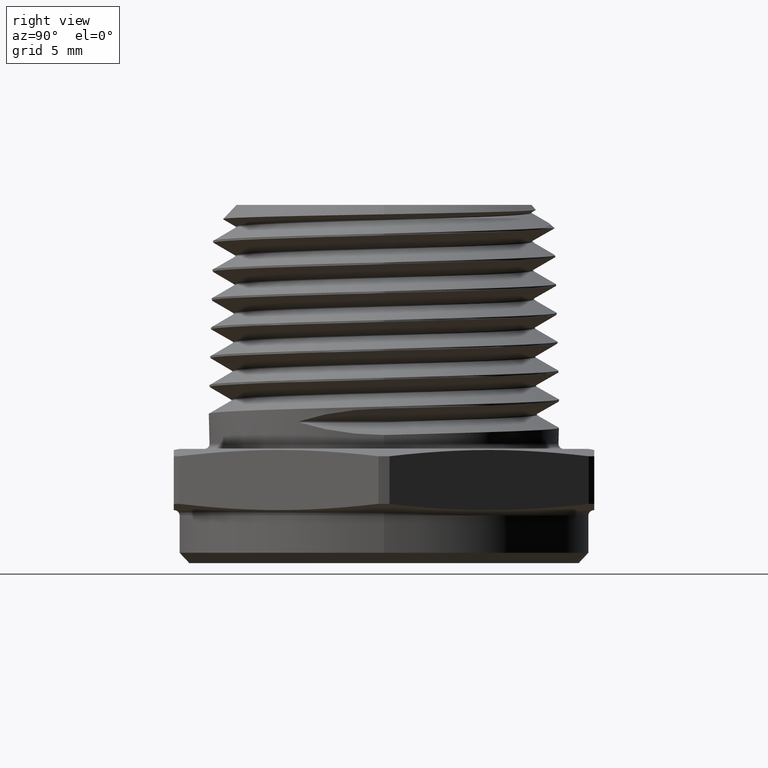
[diagram: clean part render]
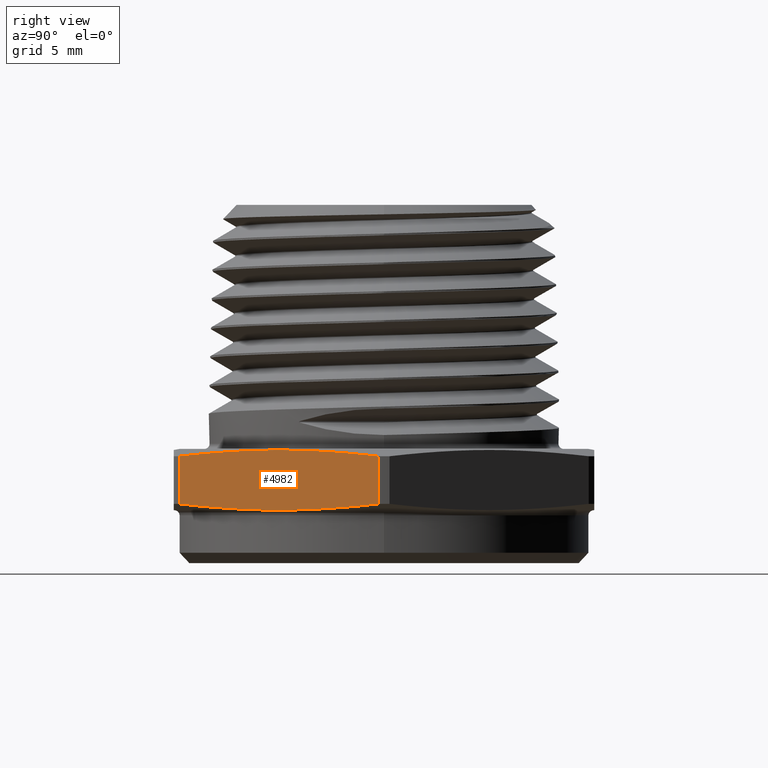
[diagram: same view with one face highlighted and labeled with its STEP entity id]
A machine part, right view. The second image highlights one B-rep face of the part: STEP entity #4982.
In plain terms, the highlighted planar face has unit normal (-0.866, 0.5, 0).
Its self-contained STEP definition (entity closure, byte-faithful):
#336 = PLANE ( 'NONE',  #2607 ) ;
#337 = CARTESIAN_POINT ( 'NONE',  ( 0.2338268590217985300, -0.4049999999999999700, 0.1200000000000000000 ) ) ;
#342 = DIRECTION ( 'NONE',  ( -0.8660254037844387100, 0.4999999999999998900, 0.0000000000000000000 ) ) ;
#343 = DIRECTION ( 'NONE',  ( -0.4999999999999998300, -0.8660254037844386000, 0.0000000000000000000 ) ) ;
#454 = LINE ( 'NONE', #4530, #456 ) ;
#456 = VECTOR ( 'NONE', #4531, 39.37007874015748100 ) ;
#460 = LINE ( 'NONE', #4556, #464 ) ;
#464 = VECTOR ( 'NONE', #4552, 39.37007874015748100 ) ;
#602 = FACE_OUTER_BOUND ( 'NONE', #1109, .T. ) ;
#669 = VERTEX_POINT ( 'NONE', #5050 ) ;
#671 = ORIENTED_EDGE ( 'NONE', *, *, #917, .T. ) ;
#675 = ORIENTED_EDGE ( 'NONE', *, *, #948, .T. ) ;
#676 = ORIENTED_EDGE ( 'NONE', *, *, #912, .T. ) ;
#774 = VERTEX_POINT ( 'NONE', #5239 ) ;
#780 = VERTEX_POINT ( 'NONE', #5211 ) ;
#912 = EDGE_CURVE ( 'NONE', #780, #3999, #454, .T. ) ;
#917 = EDGE_CURVE ( 'NONE', #774, #669, #460, .T. ) ;
#947 = EDGE_CURVE ( 'NONE', #669, #780, #4965, .T. ) ;
#948 = EDGE_CURVE ( 'NONE', #3999, #774, #4966, .T. ) ;
#1109 = EDGE_LOOP ( 'NONE', ( #4014, #676, #675, #671 ) ) ;
#1745 = CARTESIAN_POINT ( 'NONE',  ( 0.2768791911317301500, -0.3304311734012694300, 0.006632204717234089900 ) ) ;
#1746 = CARTESIAN_POINT ( 'NONE',  ( 0.2399486424312463900, -0.3943967601019040500, 0.01416768512986962300 ) ) ;
#1753 = CARTESIAN_POINT ( 'NONE',  ( 0.4246013859336652000, -0.07456882659873068100, 0.1133677952827659300 ) ) ;
#1754 = CARTESIAN_POINT ( 'NONE',  ( 0.4615319346341490400, -0.01060323989809593700, 0.1058323148701303800 ) ) ;
#1755 = CARTESIAN_POINT ( 'NONE',  ( 0.3507402885326975100, -0.2025000000000001200, -0.002381073483833796400 ) ) ;
#1756 = CARTESIAN_POINT ( 'NONE',  ( 0.4246013859336654200, -0.07456882659873059800, 0.006632204717234083800 ) ) ;
#1757 = CARTESIAN_POINT ( 'NONE',  ( 0.4615319346341490400, -0.01060323989809593700, 0.01416768512986962300 ) ) ;
#1760 = CARTESIAN_POINT ( 'NONE',  ( 0.3507402885326975600, -0.2025000000000001500, 0.1223810734838337600 ) ) ;
#1761 = CARTESIAN_POINT ( 'NONE',  ( 0.2768791911317301500, -0.3304311734012694800, 0.1133677952827659400 ) ) ;
#1762 = CARTESIAN_POINT ( 'NONE',  ( 0.2399486424312463900, -0.3943967601019040500, 0.1058323148701303800 ) ) ;
#1799 = CARTESIAN_POINT ( 'NONE',  ( 0.4615319346341490400, -0.01060323989809593700, 0.1058323148701303800 ) ) ;
#2607 = AXIS2_PLACEMENT_3D ( 'NONE', #337, #342, #343 ) ;
#3999 = VERTEX_POINT ( 'NONE', #1799 ) ;
#4014 = ORIENTED_EDGE ( 'NONE', *, *, #947, .T. ) ;
#4530 = CARTESIAN_POINT ( 'NONE',  ( 0.4615319346341490400, -0.01060323989809593700, 0.0000000000000000000 ) ) ;
#4531 = DIRECTION ( 'NONE',  ( 0.0000000000000000000, 0.0000000000000000000, 1.000000000000000000 ) ) ;
#4552 = DIRECTION ( 'NONE',  ( -0.0000000000000000000, -0.0000000000000000000, -1.000000000000000000 ) ) ;
#4556 = CARTESIAN_POINT ( 'NONE',  ( 0.2399486424312463900, -0.3943967601019040500, 0.0000000000000000000 ) ) ;
#4965 = B_SPLINE_CURVE_WITH_KNOTS ( 'NONE', 3,
 ( #1746, #1745, #1755, #1756, #1757 ),
 .UNSPECIFIED., .F., .F.,
 ( 4, 1, 4 ),
 ( 1.960092708425199400E-006, 0.005630175714662154400, 0.01125839133661588400 ),
 .UNSPECIFIED. ) ;
#4966 = B_SPLINE_CURVE_WITH_KNOTS ( 'NONE', 3,
 ( #1754, #1753, #1760, #1761, #1762 ),
 .UNSPECIFIED., .F., .F.,
 ( 4, 1, 4 ),
 ( 1.960092707718092500E-006, 0.005630175714661445800, 0.01125839133661517500 ),
 .UNSPECIFIED. ) ;
#4982 = ADVANCED_FACE ( 'NONE', ( #602 ), #336, .F. ) ;
#5050 = CARTESIAN_POINT ( 'NONE',  ( 0.2399486424312463900, -0.3943967601019040500, 0.01416768512986962300 ) ) ;
#5211 = CARTESIAN_POINT ( 'NONE',  ( 0.4615319346341490400, -0.01060323989809593700, 0.01416768512986962300 ) ) ;
#5239 = CARTESIAN_POINT ( 'NONE',  ( 0.2399486424312463900, -0.3943967601019040500, 0.1058323148701303800 ) ) ;